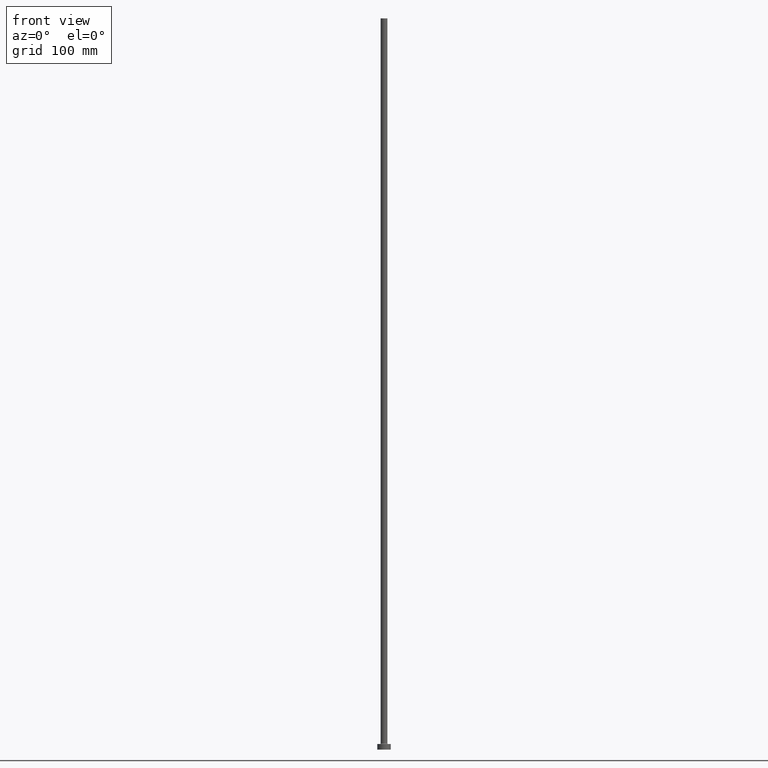
[diagram: clean part render]
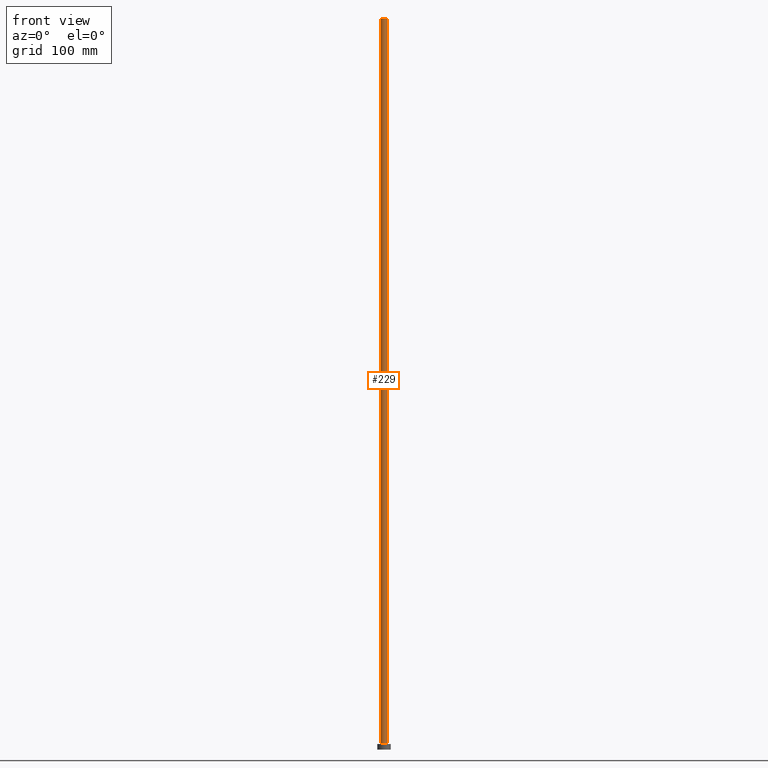
[diagram: same view with one face highlighted and labeled with its STEP entity id]
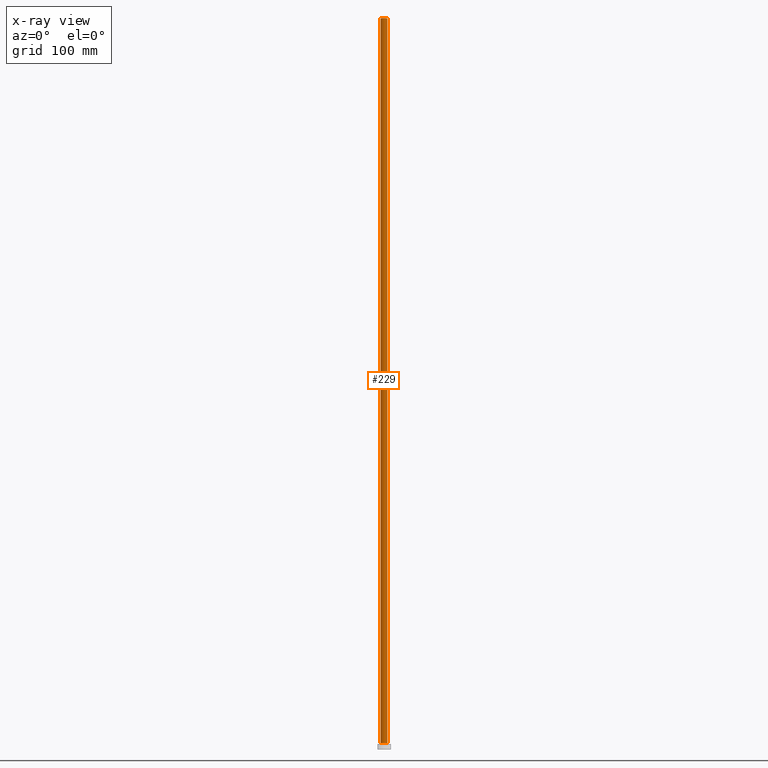
[diagram: x-ray of the same camera — body ghosted, the highlighted face saturated]
A machine part, front view. The second image highlights one B-rep face of the part: STEP entity #229.
The next image is the same camera in x-ray: the body ghosted, the highlighted face saturated — about 0% of this face is hidden behind the body in this view.
In plain terms, the highlighted cylindrical surface (edge-blend (fillet) strip) has radius 3 mm, axis along (-0, -0, -1).
Its self-contained STEP definition (entity closure, byte-faithful):
#10 = CARTESIAN_POINT ( 'NONE',  ( 3.000000000000000444, 3.673940397442059868E-16, 5.499999999999949374 ) ) ;
#30 = CARTESIAN_POINT ( 'NONE',  ( 0.000000000000000000, 0.000000000000000000, 5.499999999999949374 ) ) ;
#41 = CARTESIAN_POINT ( 'NONE',  ( 3.000000000000000444, 3.673940397442059868E-16, 650.0000000000000000 ) ) ;
#62 = DIRECTION ( 'NONE',  ( 1.000000000000000000, 0.000000000000000000, 0.000000000000000000 ) ) ;
#63 = DIRECTION ( 'NONE',  ( -0.000000000000000000, -0.000000000000000000, -1.000000000000000000 ) ) ;
#64 = AXIS2_PLACEMENT_3D ( 'NONE', #324, #181, #119 ) ;
#77 = DIRECTION ( 'NONE',  ( -0.000000000000000000, -0.000000000000000000, -1.000000000000000000 ) ) ;
#109 = CARTESIAN_POINT ( 'NONE',  ( -3.000000000000000444, 0.000000000000000000, 5.499999999999949374 ) ) ;
#111 = CYLINDRICAL_SURFACE ( 'NONE', #344, 3.000000000000000444 ) ;
#119 = DIRECTION ( 'NONE',  ( 1.000000000000000000, 0.000000000000000000, 0.000000000000000000 ) ) ;
#123 = AXIS2_PLACEMENT_3D ( 'NONE', #30, #371, #62 ) ;
#151 = CARTESIAN_POINT ( 'NONE',  ( 3.000000000000000444, 3.673940397442059868E-16, 650.0000000000000000 ) ) ;
#162 = CIRCLE ( 'NONE', #64, 3.000000000000000444 ) ;
#181 = DIRECTION ( 'NONE',  ( 0.000000000000000000, 0.000000000000000000, 1.000000000000000000 ) ) ;
#182 = DIRECTION ( 'NONE',  ( -0.000000000000000000, -0.000000000000000000, -1.000000000000000000 ) ) ;
#201 = EDGE_CURVE ( 'NONE', #301, #349, #275, .T. ) ;
#214 = ORIENTED_EDGE ( 'NONE', *, *, #255, .T. ) ;
#221 = CIRCLE ( 'NONE', #123, 3.000000000000000444 ) ;
#223 = ORIENTED_EDGE ( 'NONE', *, *, #201, .F. ) ;
#229 = ADVANCED_FACE ( 'NONE', ( #322 ), #111, .T. ) ;
#255 = EDGE_CURVE ( 'NONE', #257, #349, #221, .T. ) ;
#257 = VERTEX_POINT ( 'NONE', #109 ) ;
#263 = VECTOR ( 'NONE', #63, 1000.000000000000000 ) ;
#275 = LINE ( 'NONE', #41, #435 ) ;
#286 = ORIENTED_EDGE ( 'NONE', *, *, #330, .F. ) ;
#290 = VERTEX_POINT ( 'NONE', #291 ) ;
#291 = CARTESIAN_POINT ( 'NONE',  ( -3.000000000000000444, 0.000000000000000000, 650.0000000000000000 ) ) ;
#301 = VERTEX_POINT ( 'NONE', #151 ) ;
#307 = ORIENTED_EDGE ( 'NONE', *, *, #444, .T. ) ;
#316 = DIRECTION ( 'NONE',  ( -1.000000000000000000, 0.000000000000000000, 0.000000000000000000 ) ) ;
#322 = FACE_OUTER_BOUND ( 'NONE', #419, .T. ) ;
#324 = CARTESIAN_POINT ( 'NONE',  ( 0.000000000000000000, 0.000000000000000000, 650.0000000000000000 ) ) ;
#330 = EDGE_CURVE ( 'NONE', #290, #301, #162, .T. ) ;
#343 = LINE ( 'NONE', #455, #263 ) ;
#344 = AXIS2_PLACEMENT_3D ( 'NONE', #391, #182, #316 ) ;
#349 = VERTEX_POINT ( 'NONE', #10 ) ;
#371 = DIRECTION ( 'NONE',  ( 0.000000000000000000, 0.000000000000000000, 1.000000000000000000 ) ) ;
#391 = CARTESIAN_POINT ( 'NONE',  ( 0.000000000000000000, 0.000000000000000000, 650.0000000000000000 ) ) ;
#419 = EDGE_LOOP ( 'NONE', ( #223, #286, #307, #214 ) ) ;
#435 = VECTOR ( 'NONE', #77, 1000.000000000000000 ) ;
#444 = EDGE_CURVE ( 'NONE', #290, #257, #343, .T. ) ;
#455 = CARTESIAN_POINT ( 'NONE',  ( -3.000000000000000444, 0.000000000000000000, 650.0000000000000000 ) ) ;